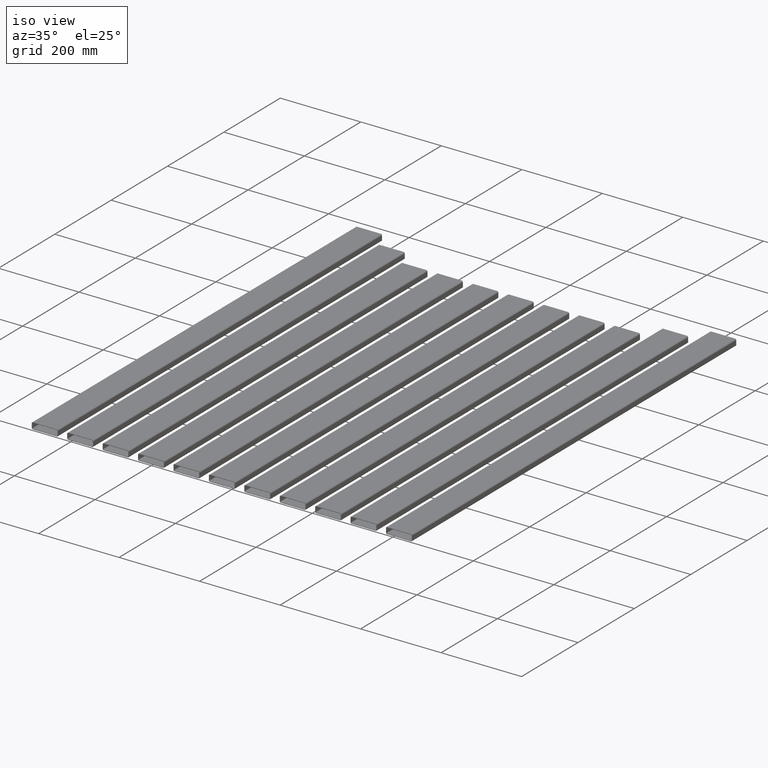
[diagram: clean part render]
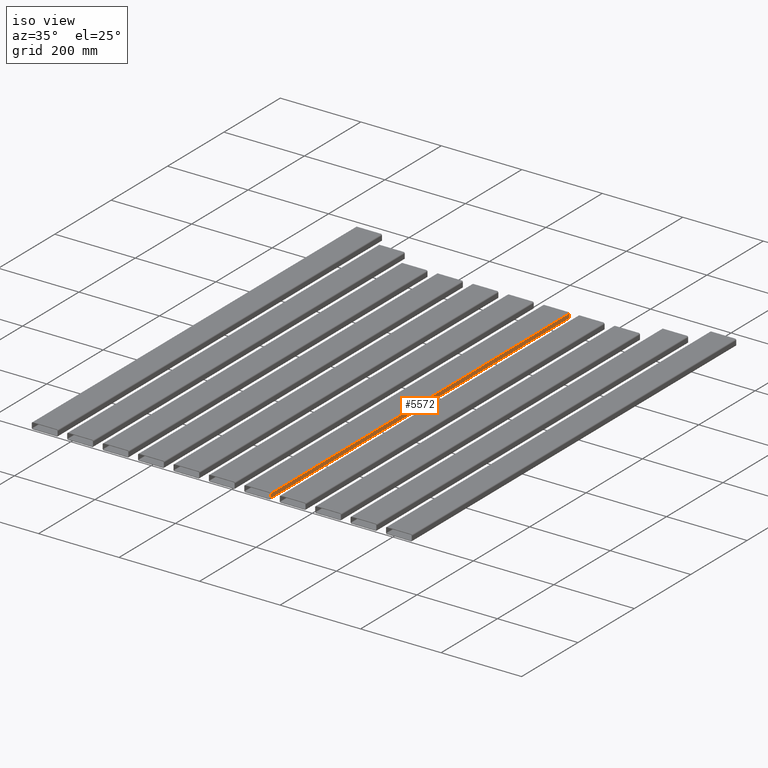
[diagram: same view with one face highlighted and labeled with its STEP entity id]
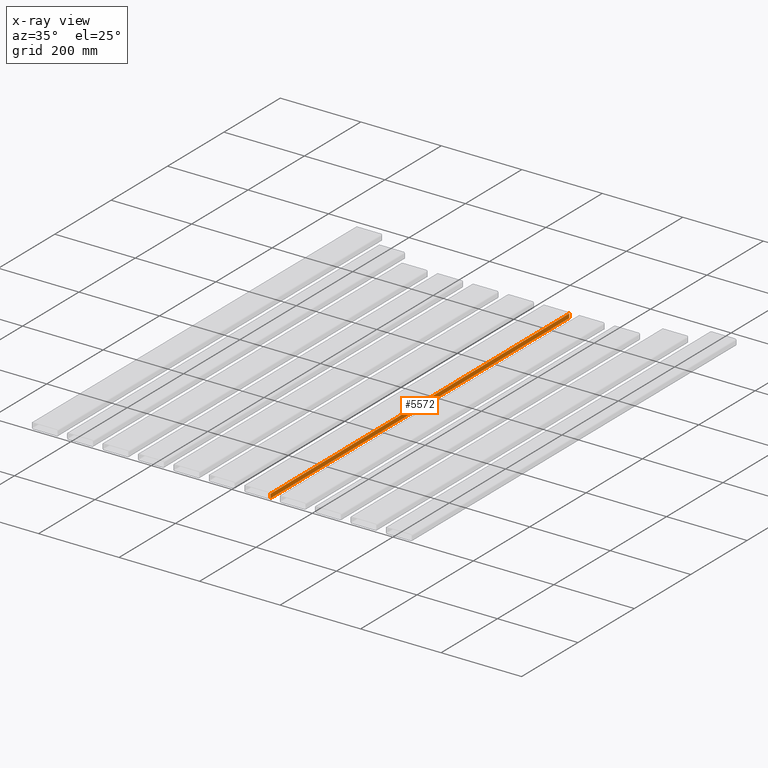
[diagram: x-ray of the same camera — body ghosted, the highlighted face saturated]
A machine part, iso view. The second image highlights one B-rep face of the part: STEP entity #5572.
The next image is the same camera in x-ray: the body ghosted, the highlighted face saturated — about 0% of this face is hidden behind the body in this view.
In plain terms, the highlighted planar face has unit normal (1, 0, 0).
Its self-contained STEP definition (entity closure, byte-faithful):
#97 = CARTESIAN_POINT ( 'NONE',  ( 120.4999999999999432, -634.9999999999998863, 5.000000000000125233 ) ) ;
#191 = CARTESIAN_POINT ( 'NONE',  ( 120.4999999999998437, 425.0000000000001705, 5.000000000000125233 ) ) ;
#582 = VECTOR ( 'NONE', #3673, 1000.000000000000000 ) ;
#681 = VECTOR ( 'NONE', #2545, 1000.000000000000000 ) ;
#1073 = EDGE_CURVE ( 'NONE', #1449, #4435, #6066, .T. ) ;
#1272 = VECTOR ( 'NONE', #2146, 1000.000000000000000 ) ;
#1275 = CARTESIAN_POINT ( 'NONE',  ( 120.4999999999999005, 425.0000000000001705, -4.999999999999892530 ) ) ;
#1441 = EDGE_LOOP ( 'NONE', ( #2321, #3397, #5547, #3298 ) ) ;
#1449 = VERTEX_POINT ( 'NONE', #3190 ) ;
#1592 = CARTESIAN_POINT ( 'NONE',  ( 120.4999999999998437, 425.0000000000001705, 5.000000000000125233 ) ) ;
#1618 = CARTESIAN_POINT ( 'NONE',  ( 120.4999999999999432, -634.9999999999998863, 5.000000000000125233 ) ) ;
#1889 = LINE ( 'NONE', #4391, #5754 ) ;
#2146 = DIRECTION ( 'NONE',  ( 5.551115123125778758E-15, 0.000000000000000000, -1.000000000000000000 ) ) ;
#2290 = VERTEX_POINT ( 'NONE', #1592 ) ;
#2321 = ORIENTED_EDGE ( 'NONE', *, *, #6298, .F. ) ;
#2510 = DIRECTION ( 'NONE',  ( 5.551115123125778758E-15, 0.000000000000000000, -1.000000000000000000 ) ) ;
#2545 = DIRECTION ( 'NONE',  ( 5.551115123125778758E-15, 0.000000000000000000, -1.000000000000000000 ) ) ;
#2570 = DIRECTION ( 'NONE',  ( 1.000000000000000000, 9.654113257610059070E-17, 5.551115123125778758E-15 ) ) ;
#2929 = DIRECTION ( 'NONE',  ( -9.654113257610061536E-17, 1.000000000000000000, 0.000000000000000000 ) ) ;
#2982 = PLANE ( 'NONE',  #3416 ) ;
#3190 = CARTESIAN_POINT ( 'NONE',  ( 120.5000000000000000, -634.9999999999998863, -4.999999999999893419 ) ) ;
#3298 = ORIENTED_EDGE ( 'NONE', *, *, #1073, .T. ) ;
#3397 = ORIENTED_EDGE ( 'NONE', *, *, #4140, .F. ) ;
#3416 = AXIS2_PLACEMENT_3D ( 'NONE', #1618, #2570, #2510 ) ;
#3502 = EDGE_CURVE ( 'NONE', #6252, #1449, #5389, .T. ) ;
#3673 = DIRECTION ( 'NONE',  ( -9.654113257610061536E-17, 1.000000000000000000, 0.000000000000000000 ) ) ;
#4140 = EDGE_CURVE ( 'NONE', #6252, #2290, #1889, .T. ) ;
#4391 = CARTESIAN_POINT ( 'NONE',  ( 120.4999999999999432, -634.9999999999998863, 5.000000000000125233 ) ) ;
#4435 = VERTEX_POINT ( 'NONE', #1275 ) ;
#4461 = CARTESIAN_POINT ( 'NONE',  ( 120.4999999999999432, -634.9999999999998863, 5.000000000000125233 ) ) ;
#4534 = LINE ( 'NONE', #191, #1272 ) ;
#4549 = FACE_OUTER_BOUND ( 'NONE', #1441, .T. ) ;
#5389 = LINE ( 'NONE', #4461, #681 ) ;
#5547 = ORIENTED_EDGE ( 'NONE', *, *, #3502, .T. ) ;
#5572 = ADVANCED_FACE ( 'NONE', ( #4549 ), #2982, .T. ) ;
#5754 = VECTOR ( 'NONE', #2929, 1000.000000000000000 ) ;
#6066 = LINE ( 'NONE', #6094, #582 ) ;
#6094 = CARTESIAN_POINT ( 'NONE',  ( 120.5000000000000000, -634.9999999999998863, -4.999999999999893419 ) ) ;
#6252 = VERTEX_POINT ( 'NONE', #97 ) ;
#6298 = EDGE_CURVE ( 'NONE', #2290, #4435, #4534, .T. ) ;